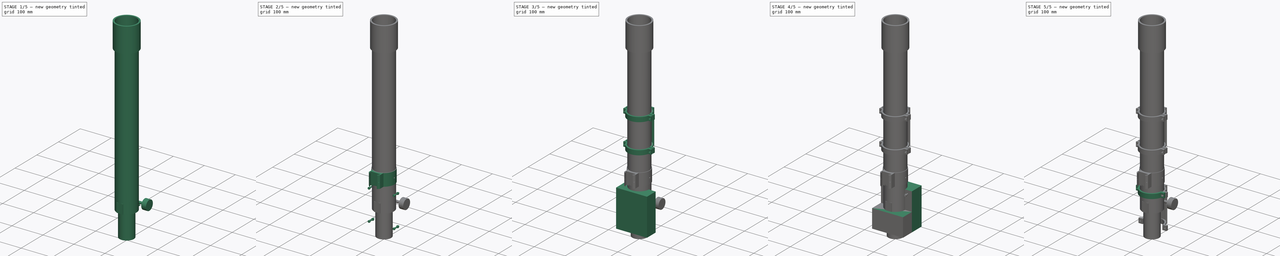
[diagram: build sequence overview — one tinted view per stage of 5, left to right]
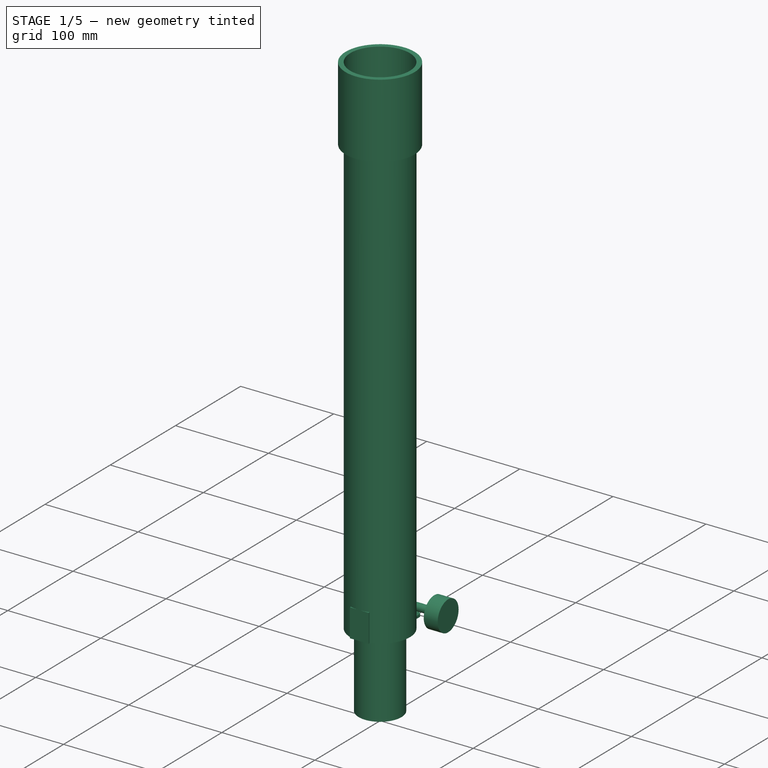
[diagram: stage 1 of 5 — iso view after this stage's code; geometry added in this stage tinted green]
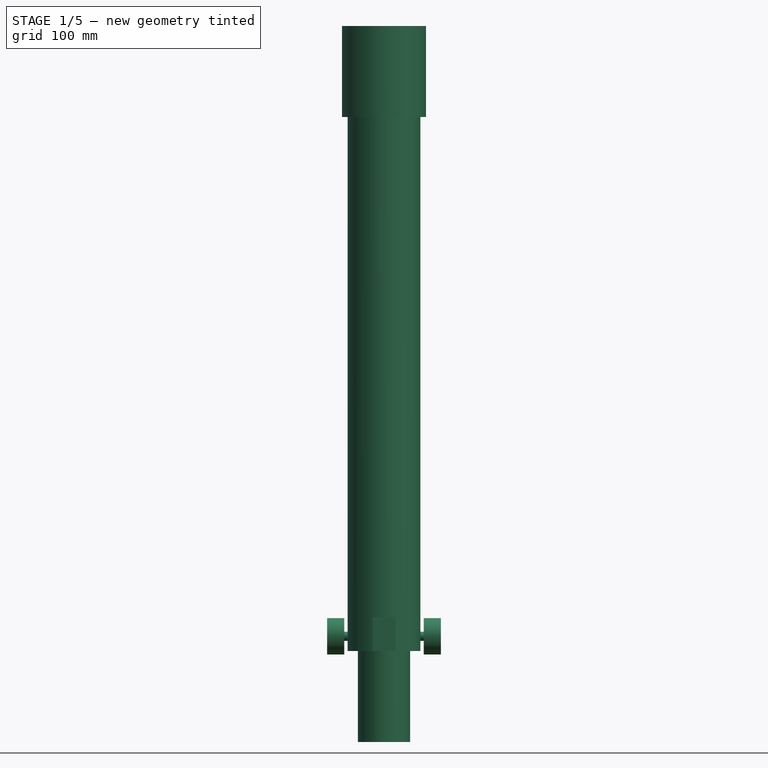
[diagram: stage 1 of 5 — front view after this stage's code; geometry added in this stage tinted green]
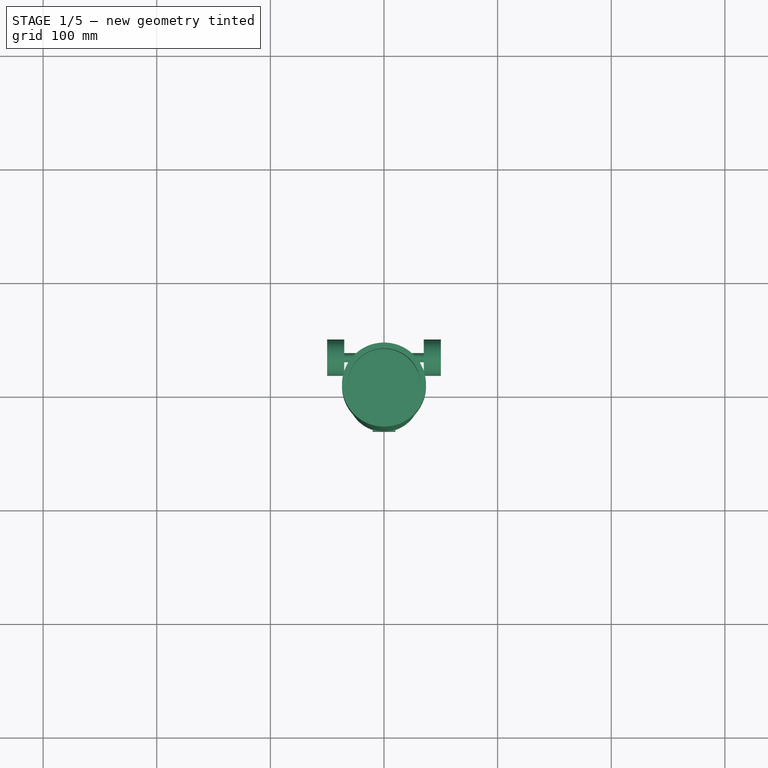
[diagram: stage 1 of 5 — top view after this stage's code; geometry added in this stage tinted green]
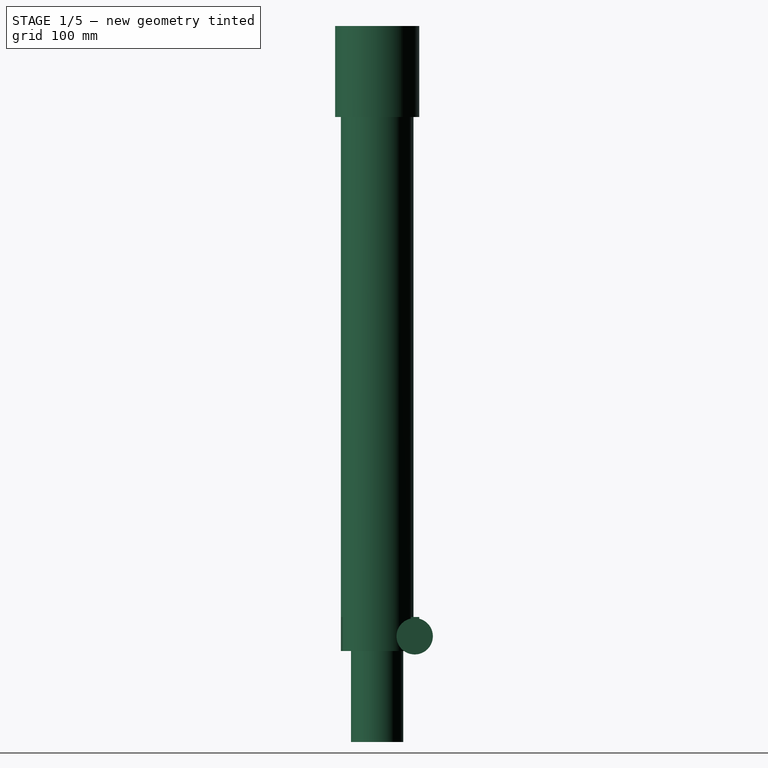
[diagram: stage 1 of 5 — right view after this stage's code; geometry added in this stage tinted green]
FCSTD DOCUMENT  (FreeCAD 0.17R12284 (Git))
Label: DIY telescope
License: All rights reserved
LicenseURL: http://en.wikipedia.org/wiki/All_rights_reserved
objects: Part::MultiFuse×35, Part::Cylinder×31, Part::Box×28, Part::FeaturePython×26, Part::Cut×22, Sketcher::SketchObject×4, Part::Extrusion×4, Part::Chamfer×1, App::Part×1
note: 151 computed .brp shape members not serialized (recipe doc carries the construction recipe); baked Part::Feature solids carry a one-line shape summary decoded from their .brp

FEATURE [Part::Cylinder] Cylinder014005177  label="Válec"
  Angle = 360
  AttacherType = Attacher::AttachEngine3D
  Height = 500
  Radius = 28.5
FEATURE [Part::Cylinder] Cylinder014005178  label="Válec164"
  Angle = 360
  AttacherType = Attacher::AttachEngine3D
  Height = 500
  Radius = 32
FEATURE [Part::Extrusion] Extrude003
  Base = -> Sketch003
  Dir = (0,1,0)
  DirMode = 2
  FaceMakerClass = Part::FaceMakerBullseye
  LengthFwd = -40
  LengthRev = 0
  Placement = pos=(-15,0,0) rot=(0,0,1;0rad)
  Solid = true
  Symmetric = false
FEATURE [Part::Cut] Cut061020  label="tubus !"
  Base = -> Cylinder014005178
  Tool = -> Cylinder014005177
FEATURE [Part::Box] Box034  label="Krychle025"
  AttacherType = Attacher::AttachEngine3D
  Height = 30
  Length = 20
  Placement = pos=(-10,-32,0) rot=(0,0,1;0rad)
  Width = 5
FEATURE [Part::Box] Box035  label="Krychle026"
  AttacherType = Attacher::AttachEngine3D
  Height = 30
  Length = 24
  Placement = pos=(-12,25,0) rot=(0,0,1;0rad)
  Width = 12
FEATURE [Part::Box] Box036  label="Krychle027"
  AttacherType = Attacher::AttachEngine3D
  Height = 30
  Length = 20
  Placement = pos=(-10,-32,0) rot=(0,0,1;0rad)
  Width = 5
FEATURE [Part::Box] Box037  label="Krychle028"
  AttacherType = Attacher::AttachEngine3D
  Height = 30
  Length = 24
  Placement = pos=(-12,25,0) rot=(0,0,1;0rad)
  Width = 12
FEATURE [Part::MultiFuse] Fusion121
  Shapes = -> [Box034,Box035]
FEATURE [Part::Cut] Cut061021  label="Tubus"
  Base = -> Cut061020
  Tool = -> Fusion121
FEATURE [Part::Cylinder] Cylinder014005179  label="Válec165"
  Angle = 360
  AttacherType = Attacher::AttachEngine3D
  Height = 30
  Radius = 28
FEATURE [Part::Cylinder] Cylinder014005180  label="Válec166"
  Angle = 360
  AttacherType = Attacher::AttachEngine3D
  Height = 30
  Radius = 23
FEATURE [Part::MultiFuse] Fusion122
  Shapes = -> [Box037,Box036,Cylinder014005179]
FEATURE [Part::Cut] Cut061022
  Base = -> Fusion122
  Tool = -> Cylinder014005180
FEATURE [Part::Cylinder] Cylinder014005181  label="Válec167"
  Angle = 360
  AttacherType = Attacher::AttachEngine3D
  Height = 120
  Placement = pos=(0,0,-80) rot=(0,0,1;0rad)
  Radius = 23
FEATURE [Part::Cylinder] Cylinder014005182  label="Válec168"
  Angle = 360
  AttacherType = Attacher::AttachEngine3D
  Height = 120
  Placement = pos=(0,0,-80) rot=(0,0,1;0rad)
  Radius = 20.5
FEATURE [Part::Cut] Cut061023
  Base = -> Cylinder014005181
  Tool = -> Cylinder014005182
FEATURE [Part::Cylinder] Cylinder014005183  label="Válec169"
  Angle = 360
  AttacherType = Attacher::AttachEngine3D
  Height = 100
  Placement = pos=(-50,33,13) rot=(0,1,0;1.5708rad)
  Radius = 4
FEATURE [Part::Cylinder] Cylinder014005184  label="Válec170"
  Angle = 360
  AttacherType = Attacher::AttachEngine3D
  Height = 15
  Placement = pos=(-50,33,13) rot=(0,1,0;1.5708rad)
  Radius = 16
FEATURE [Part::Cylinder] Cylinder014005185  label="Válec171"
  Angle = 360
  AttacherType = Attacher::AttachEngine3D
  Height = 15
  Placement = pos=(35,33,13) rot=(0,1,0;1.5708rad)
  Radius = 16
FEATURE [Part::MultiFuse] Fusion123  label="Focuser"
  Shapes = -> [Cut061023,Cut061022,Cylinder014005183,Cylinder014005184,Cylinder014005185]
FEATURE [Part::Cylinder] Cylinder014005186  label="Lens"
  Angle = 360
  AttacherType = Attacher::AttachEngine3D
  Height = 10
  Placement = pos=(0,0,500) rot=(0,0,1;0rad)
  Radius = 32
FEATURE [Part::Cylinder] Cylinder014005187  label="LensH"
  Angle = 360
  AttacherType = Attacher::AttachEngine3D
  Height = 80
  Placement = pos=(0,0,500) rot=(0,0,1;0rad)
  Radius = 37
FEATURE [Part::Cylinder] Cylinder014005188  label="LensH001"
  Angle = 360
  AttacherType = Attacher::AttachEngine3D
  Height = 80
  Placement = pos=(0,0,500) rot=(0,0,1;0rad)
  Radius = 32
FEATURE [Part::Cut] Cut061024
  Base = -> Cylinder014005187
  Placement = pos=(0,0,-30) rot=(0,0,1;0rad)
  Tool = -> Cylinder014005188
FEATURE [Part::Cylinder] Cylinder014005189  label="Lens001"
  Angle = 360
  AttacherType = Attacher::AttachEngine3D
  Height = 2
  Placement = pos=(0,0,510) rot=(0,0,1;0rad)
  Radius = 32
FEATURE [Part::Cylinder] Cylinder014005190  label="Lens002"
  Angle = 360
  AttacherType = Attacher::AttachEngine3D
  Height = 2
  Placement = pos=(0,0,510) rot=(0,0,1;0rad)
  Radius = 30
FEATURE [Part::Cut] Cut061025
  Base = -> Cylinder014005189
  Tool = -> Cylinder014005190
FEATURE [Part::MultiFuse] Fusion124
  Shapes = -> [Cut061025,Cut061024]
FEATURE [App::Part] Part  label="DIY telescope"
  Group = -> [Cut061020,Cylinder014005177,Cylinder014005178,Box034,Box035,Fusion121,Cut061021,Cylinder014005184,Cylinder014005180,Cylinder014005182,Cylinder014005185,Cylinder014005179,Cylinder014005183,Cylinder014005181,Box037,Cut061023,Cut061022,Box036,Fusion122,Fusion123,Cylinder014005186,Cylinder014005187,Cylinder014005189,Cylinder014005188,Cut061024,Cut061025,Cylinder014005190,Fusion124,Fusion097,Fusion099,+48 more]
  License = CC BY 3.0
  LicenseURL = http://creativecommons.org/licenses/by/3.0/
  Origin = -> Origin
  Placement = pos=(0,0,0) rot=(-1,0,0;1.5708rad)
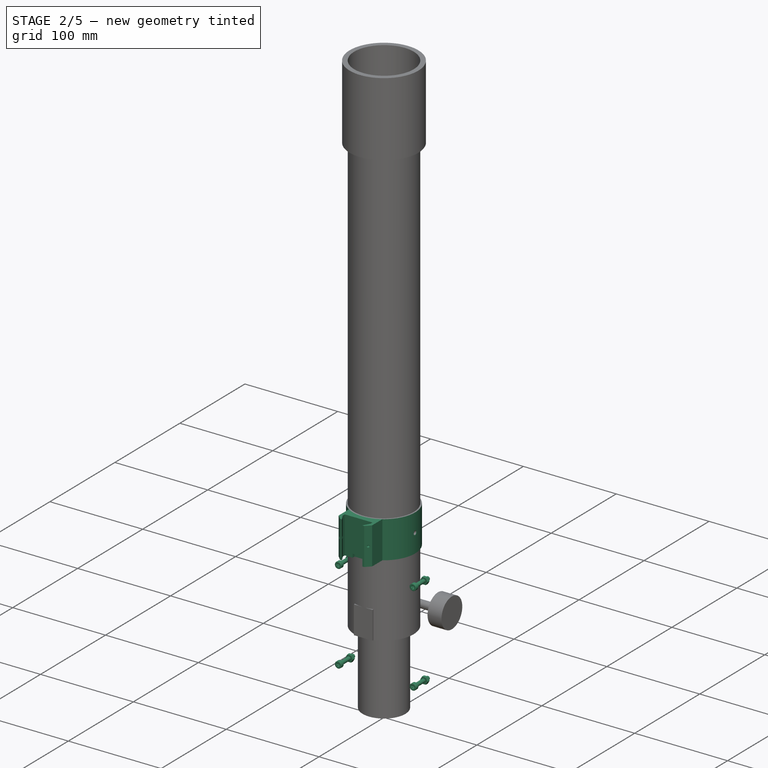
[diagram: stage 2 of 5 — iso view after this stage's code; geometry added in this stage tinted green]
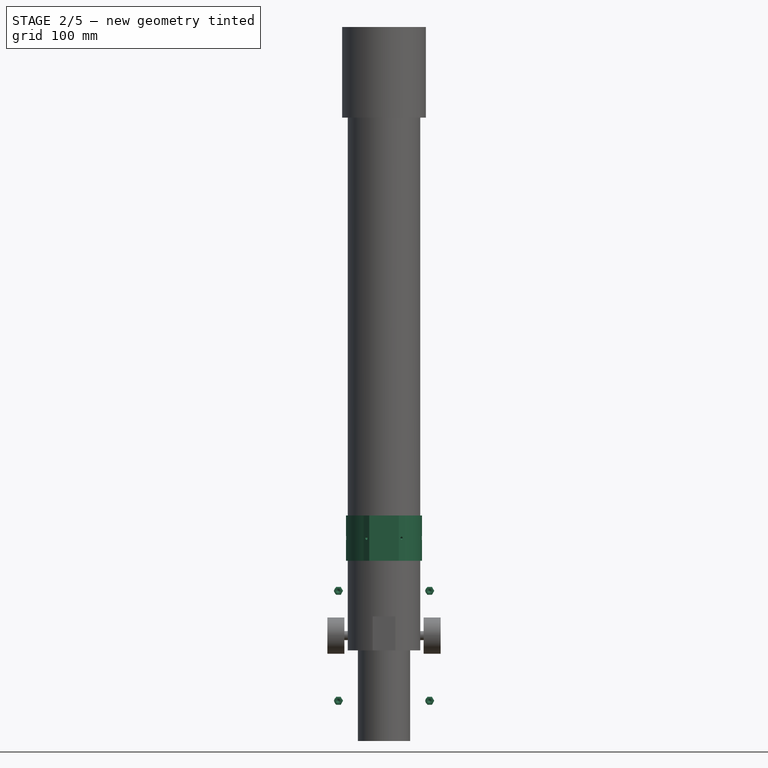
[diagram: stage 2 of 5 — front view after this stage's code; geometry added in this stage tinted green]
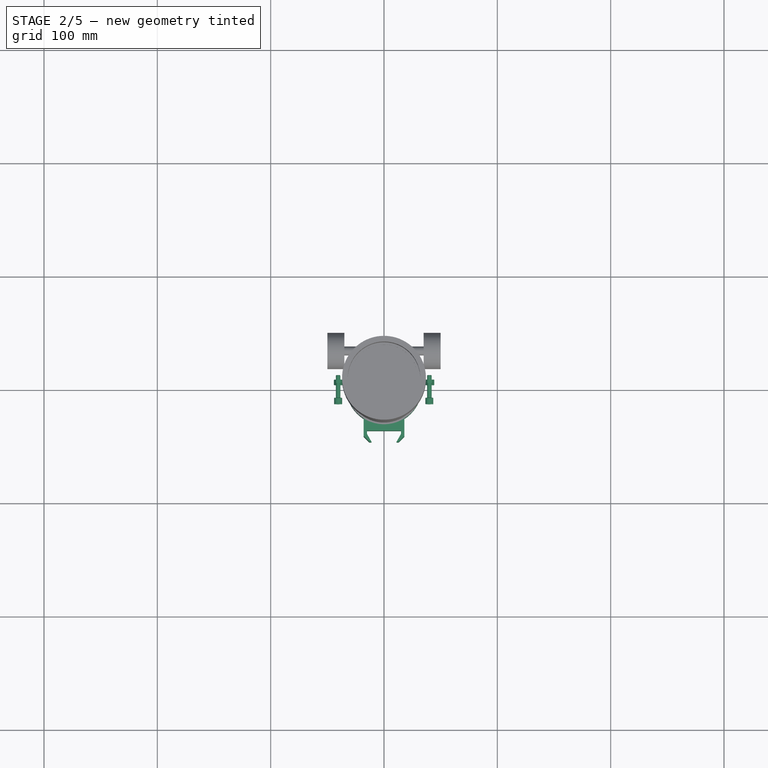
[diagram: stage 2 of 5 — top view after this stage's code; geometry added in this stage tinted green]
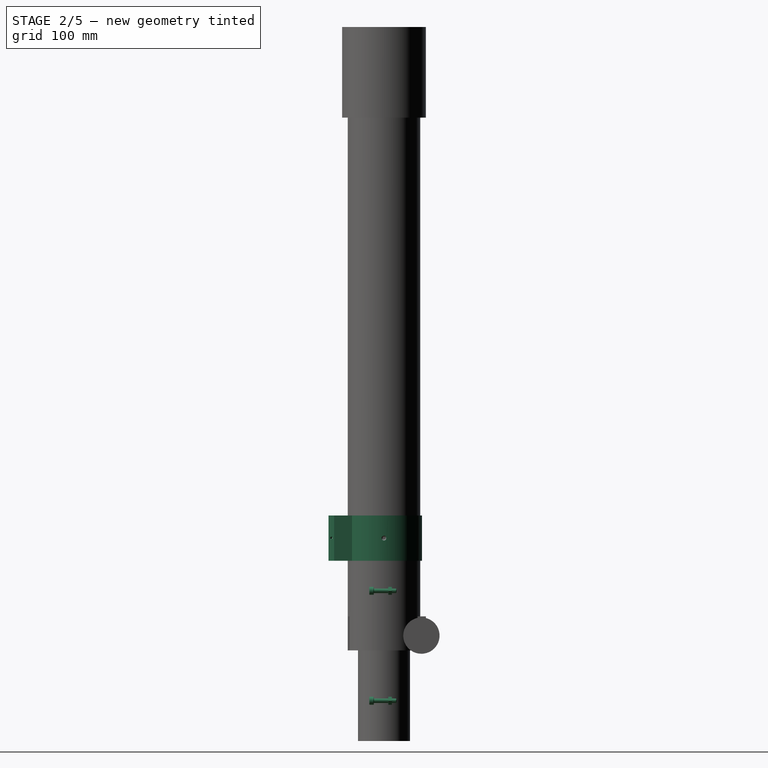
[diagram: stage 2 of 5 — right view after this stage's code; geometry added in this stage tinted green]
FEATURE [Part::FeaturePython] Screw  label="M4x20-Screw"  # Fasteners workbench fastener (typed FeaturePython)
  Placement = pos=(-40.5,-9,53) rot=(1,0,0;1.5708rad)
  diameter = 4
  invert = false
  length = 5
  matchOuter = false
  offset = 0
  thread = false
  type = 5
FEATURE [Part::FeaturePython] Nut  label="M4-Nut"  # Fasteners workbench fastener (typed FeaturePython)
  Placement = pos=(-40.2,7,53) rot=(1,0,0;1.5708rad)
  diameter = 6
  invert = false
  matchOuter = false
  offset = 0
  thread = false
  type = 1
FEATURE [Part::MultiFuse] Fusion098  label="Srouby"
  Placement = pos=(0,0,-0.5) rot=(0,0,1;0rad)
  Shapes = -> [Screw,Nut]
FEATURE [Part::FeaturePython] Nut001  label="M4-Nut001"  # Fasteners workbench fastener (typed FeaturePython)
  Placement = pos=(-40.2,7,53) rot=(1,0,0;1.5708rad)
  diameter = 6
  invert = false
  matchOuter = false
  offset = 0
  thread = false
  type = 1
FEATURE [Part::FeaturePython] Screw001  label="M4x20-Screw001"  # Fasteners workbench fastener (typed FeaturePython)
  Placement = pos=(-40.5,-9,53) rot=(1,0,0;1.5708rad)
  diameter = 4
  invert = false
  length = 5
  matchOuter = false
  offset = 0
  thread = false
  type = 5
FEATURE [Part::MultiFuse] Fusion099  label="Srouby001"
  Placement = pos=(80.5,0,-0.5) rot=(0,0,1;0rad)
  Shapes = -> [Screw001,Nut001]
FEATURE [Part::FeaturePython] Nut002  label="M4-Nut002"  # Fasteners workbench fastener (typed FeaturePython)
  Placement = pos=(-40.2,7,53) rot=(1,0,0;1.5708rad)
  diameter = 6
  invert = false
  matchOuter = false
  offset = 0
  thread = false
  type = 1
FEATURE [Part::FeaturePython] Screw002  label="M4x20-Screw002"  # Fasteners workbench fastener (typed FeaturePython)
  Placement = pos=(-40.5,-9,53) rot=(1,0,0;1.5708rad)
  diameter = 4
  invert = false
  length = 5
  matchOuter = false
  offset = 0
  thread = false
  type = 5
FEATURE [Part::MultiFuse] Fusion100  label="Srouby002"
  Placement = pos=(0,0,-97.5) rot=(0,0,1;0rad)
  Shapes = -> [Screw002,Nut002]
FEATURE [Part::FeaturePython] Nut003  label="M4-Nut003"  # Fasteners workbench fastener (typed FeaturePython)
  Placement = pos=(-40.2,7,53) rot=(1,0,0;1.5708rad)
  diameter = 6
  invert = false
  matchOuter = false
  offset = 0
  thread = false
  type = 1
FEATURE [Part::FeaturePython] Screw003  label="M4x20-Screw003"  # Fasteners workbench fastener (typed FeaturePython)
  Placement = pos=(-40.5,-9,53) rot=(1,0,0;1.5708rad)
  diameter = 4
  invert = false
  length = 5
  matchOuter = false
  offset = 0
  thread = false
  type = 5
FEATURE [Part::MultiFuse] Fusion101  label="Srouby003"
  Placement = pos=(80.5,0,-97.5) rot=(0,0,1;0rad)
  Shapes = -> [Screw003,Nut003]
FEATURE [Part::Box] Box009  label="Krychle009"
  AttacherType = Attacher::AttachEngine3D
  Height = 3
  Length = 13
  Placement = pos=(-6.5,0,-3) rot=(0,0,1;0rad)
  Width = 4
FEATURE [Part::Cylinder] Cylinder007  label="Válec007"
  Angle = 360
  AttacherType = Attacher::AttachEngine3D
  Height = 10
  Placement = pos=(-12,20,4) rot=(0,-1,0;0.785398rad)
  Radius = 1.4
FEATURE [Part::Cylinder] Cylinder008  label="Válec008"
  Angle = 360
  AttacherType = Attacher::AttachEngine3D
  Height = 10
  Placement = pos=(12,20,4) rot=(0,1,0;0.785398rad)
  Radius = 1.4
FEATURE [Part::Box] Box008  label="Krychle008"
  AttacherType = Attacher::AttachEngine3D
  Height = 15
  Length = 36
  Placement = pos=(-18,0,-5) rot=(0,0,1;0rad)
  Width = 40
FEATURE [Part::FeaturePython] Screw012  label="M2.5x8-Screw"  # Fasteners workbench fastener (typed FeaturePython)
  Placement = pos=(34,0,20) rot=(0,1,0;1.5708rad)
  diameter = 3
  invert = false
  length = 3
  matchOuter = false
  offset = 0
  thread = false
  type = 12
FEATURE [Part::FeaturePython] Screw013  label="M2.5x8-Screw001"  # Fasteners workbench fastener (typed FeaturePython)
  Placement = pos=(-34,0,20) rot=(0,-1,0;1.5708rad)
  diameter = 3
  invert = false
  length = 3
  matchOuter = false
  offset = 0
  thread = false
  type = 12
FEATURE [Sketcher::SketchObject] Sketch003
  MapMode = 5
  Placement = pos=(0,40,0) rot=(0,0.707107,0.707107;3.14159rad)
  sketch-geometry (6):
    g0: LineSegment StartX=0 StartY=0 StartZ=0 EndX=0 EndY=3 EndZ=0
    g1: LineSegment StartX=0 StartY=3 StartZ=0 EndX=-4 EndY=10 EndZ=0
    g2: LineSegment StartX=-4 StartY=10 StartZ=0 EndX=-26 EndY=10 EndZ=0
    g3: LineSegment StartX=-26 StartY=10 StartZ=0 EndX=-30 EndY=3 EndZ=0
    g4: LineSegment StartX=-30 StartY=3 StartZ=0 EndX=-30 EndY=0 EndZ=0
    g5: LineSegment StartX=-30 StartY=0 StartZ=0 EndX=0 EndY=0 EndZ=0
  constraints (11):
    c: Coincident(g-1,g0)
    c: PointOnObject(g0,g-2)
    c: Coincident(g0,g1)
    c: Coincident(g1,g2)
    c: Horizontal(g2)
    c: Coincident(g2,g3)
    c: Coincident(g3,g4)
    c: PointOnObject(g4,g-1)
    c: Vertical(g4)
    c: Coincident(g4,g5)
    c: Coincident(g5,g0)
FEATURE [Part::Box] Box010  label="Krychle010"
  AttacherType = Attacher::AttachEngine3D
  Height = 40
  Length = 36
  Placement = pos=(-18,-36,0) rot=(0,0,1;0rad)
  Width = 10
FEATURE [Part::Cylinder] Cylinder010  label="Válec010"
  Angle = 360
  AttacherType = Attacher::AttachEngine3D
  Height = 40
  Placement = pos=(0,0,0) rot=(0,0,1;3.83972rad)
  Radius = 33.5
FEATURE [Part::Cylinder] Cylinder009  label="Válec009"
  Angle = 360
  AttacherType = Attacher::AttachEngine3D
  Height = 40
  Placement = pos=(0,0,0) rot=(0,0,1;0.872665rad)
  Radius = 32
FEATURE [Part::MultiFuse] Fusion006
  Shapes = -> [Cylinder008,Cylinder007]
FEATURE [Part::MultiFuse] Fusion007  label="Dovecot profile002"
  Shapes = -> [Extrude003,Box009]
FEATURE [Part::Cut] Cut004
  Base = -> Box008
  Tool = -> Fusion007
FEATURE [Part::Chamfer] Chamfer001
  Base = -> Cut004
  Edges = 2 edges r=5: [Edge2,Edge29]
FEATURE [Part::Cut] Cut005  label="Dov holder001"
  Base = -> Chamfer001
  Placement = pos=(0,-39,0) rot=(1,0,0;1.5708rad)
  Tool = -> Fusion006
FEATURE [Part::MultiFuse] Fusion009
  Shapes = -> [Screw012,Screw013]
FEATURE [Part::MultiFuse] Fusion008
  Shapes = -> [Cylinder010,Cut005,Box010]
FEATURE [Part::Cut] Cut006
  Base = -> Fusion008
  Tool = -> Cylinder009
FEATURE [Part::Cut] Cut007  label="Telscop dovetail holder"
  Base = -> Cut006
  Placement = pos=(0,0,79) rot=(0,0,1;0rad)
  Tool = -> Fusion009
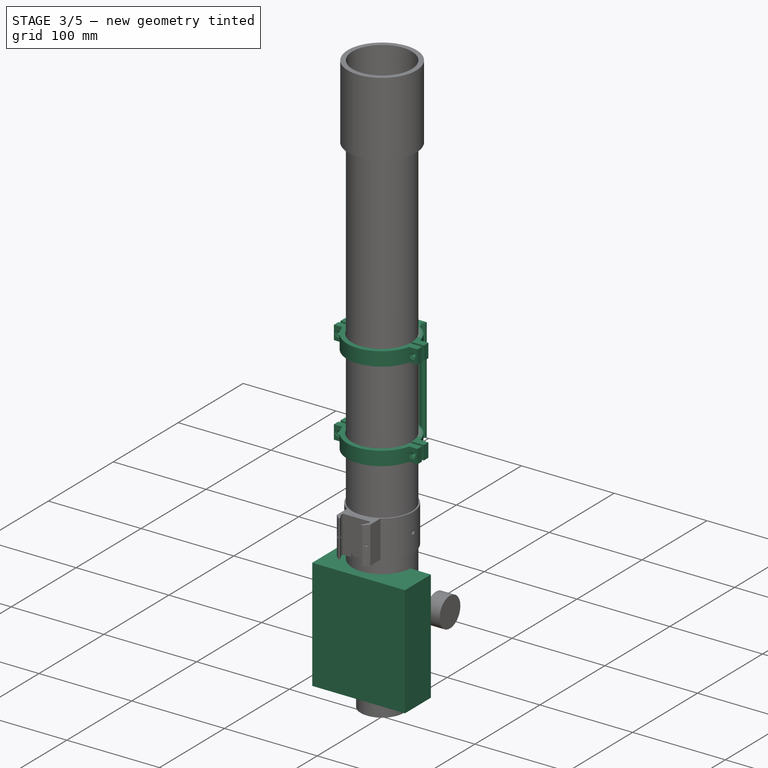
[diagram: stage 3 of 5 — iso view after this stage's code; geometry added in this stage tinted green]
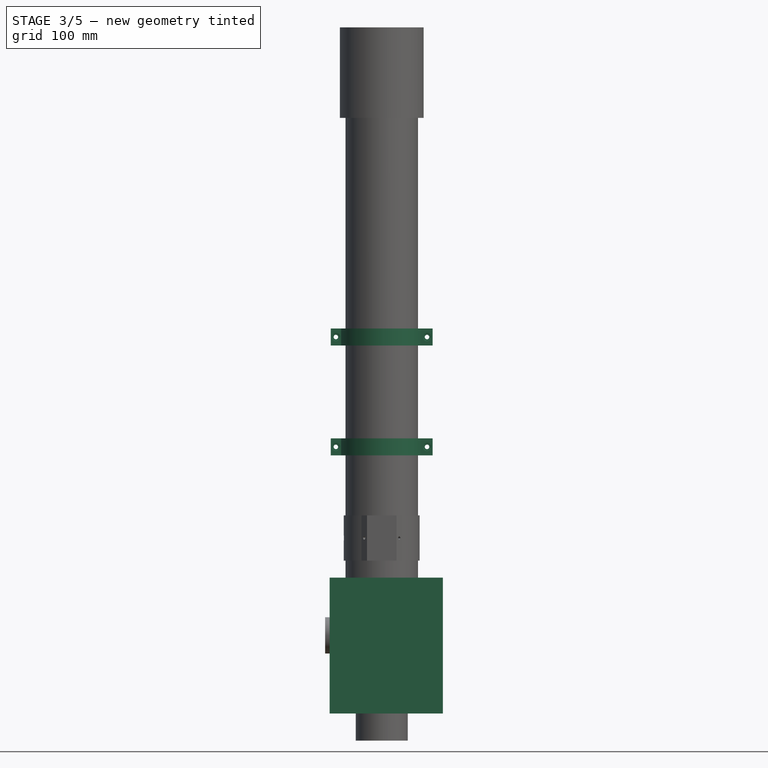
[diagram: stage 3 of 5 — front view after this stage's code; geometry added in this stage tinted green]
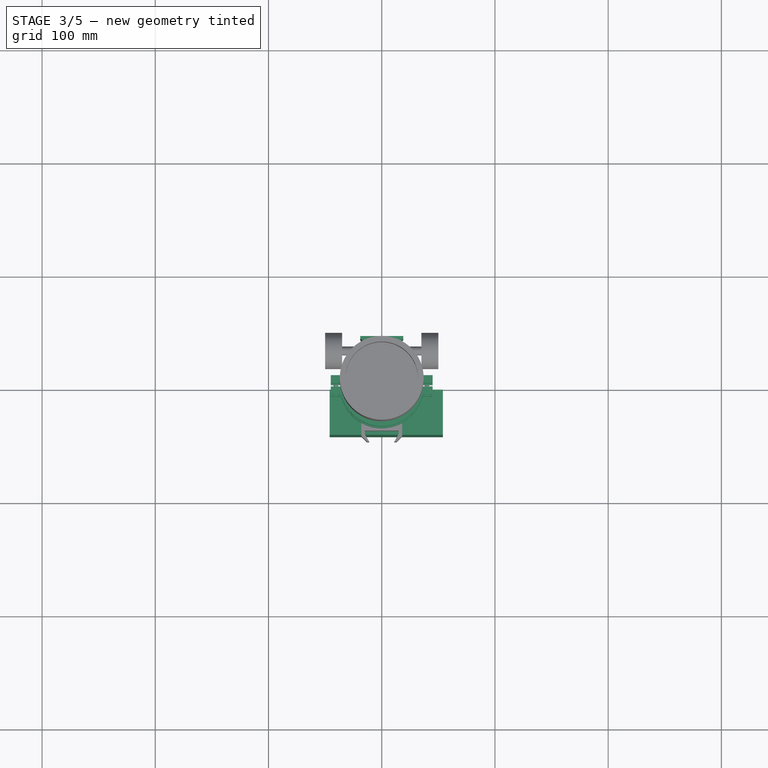
[diagram: stage 3 of 5 — top view after this stage's code; geometry added in this stage tinted green]
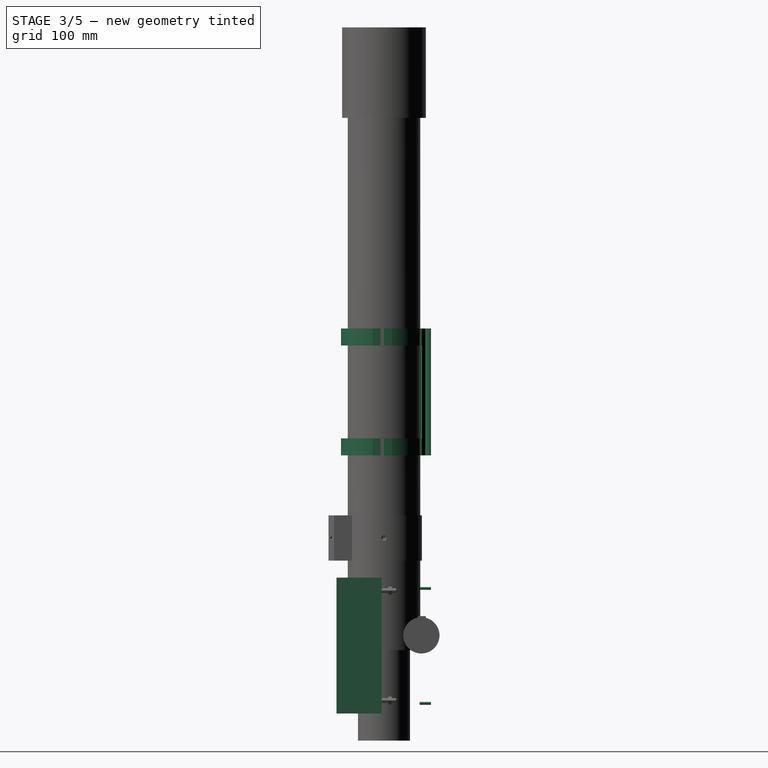
[diagram: stage 3 of 5 — right view after this stage's code; geometry added in this stage tinted green]
FEATURE [Sketcher::SketchObject] Sketch
  MapMode = 5
  Placement = pos=(0,0,60) rot=(0,0,1;0rad)
  sketch-geometry (6):
    g0: LineSegment StartX=-18.9734 StartY=34.0308 StartZ=0 EndX=-16.0253 EndY=36.9748 EndZ=0
    g1: LineSegment StartX=18.996 StartY=34.0308 StartZ=0 EndX=16.044 EndY=36.9748 EndZ=0
    g2: LineSegment StartX=18.996 StartY=34.0308 StartZ=0 EndX=-18.9734 EndY=34.0308 EndZ=0
    g3: LineSegment StartX=-18.9734 StartY=40.0311 StartZ=0 EndX=-16.0253 EndY=36.9748 EndZ=0
    g4: LineSegment StartX=16.044 StartY=36.9748 StartZ=0 EndX=18.9109 EndY=40.0311 EndZ=0
    g5: LineSegment StartX=-18.9734 StartY=40.0311 StartZ=0 EndX=18.9109 EndY=40.0311 EndZ=0
  constraints (7):
    c: Coincident(g2,g1)
    c: Coincident(g2,g0)
    c: Horizontal(g2)
    c: Coincident(g3,g0)
    c: Coincident(g5,g3)
    c: Coincident(g5,g4)
    c: Horizontal(g5)
FEATURE [Part::Extrusion] Extrude009
  Base = -> Sketch
  Dir = (0,0,1)
  DirMode = 2
  FaceMakerClass = Part::FaceMakerBullseye
  LengthFwd = -112
  LengthRev = 0
  Solid = true
  Symmetric = false
FEATURE [Part::Box] Box014  label="Krychle"
  AttacherType = Attacher::AttachEngine3D
  Height = 112
  Length = 38
  Placement = pos=(-19,32,-52) rot=(0,0,1;0rad)
  Width = 10
FEATURE [Part::Box] Box015  label="Krychle011"
  AttacherType = Attacher::AttachEngine3D
  Height = 112
  Length = 38
  Placement = pos=(-19,34,-52) rot=(0,0,1;0rad)
  Width = 6
FEATURE [Part::Cut] Cut061009
  Base = -> Box014
  Tool = -> Box015
FEATURE [Part::MultiFuse] Fusion095  label="Arca plate base"
  Placement = pos=(0,-0.5,0) rot=(0,0,1;0rad)
  Shapes = -> [Extrude009,Cut061009]
FEATURE [Part::Cylinder] Cylinder  label="tubus"
  Angle = 360
  AttacherType = Attacher::AttachEngine3D
  Height = 112
  Placement = pos=(0,-1,-52) rot=(0,0,1;0rad)
  Radius = 32
FEATURE [Part::Cylinder] Cylinder014005167  label="tubus001"
  Angle = 360
  AttacherType = Attacher::AttachEngine3D
  Height = 15
  Placement = pos=(0,-1,-52) rot=(0,0,1;0rad)
  Radius = 37
FEATURE [Part::Cylinder] Cylinder014005168  label="tubus002"
  Angle = 360
  AttacherType = Attacher::AttachEngine3D
  Height = 15
  Placement = pos=(0,-1,45) rot=(0,0,1;0rad)
  Radius = 37
FEATURE [Part::Box] Box  label="Krychle012"
  AttacherType = Attacher::AttachEngine3D
  Height = 15
  Length = 90
  Placement = pos=(-45,-10,45) rot=(0,0,1;0rad)
  Width = 17
FEATURE [Part::Box] Box016  label="mezara"
  AttacherType = Attacher::AttachEngine3D
  Height = 15
  Length = 90
  Placement = pos=(-45,-3,45) rot=(0,0,1;0rad)
  Width = 3
FEATURE [Part::Box] Box017  label="Krychle013"
  AttacherType = Attacher::AttachEngine3D
  Height = 15
  Length = 90
  Placement = pos=(-45,-10,-52) rot=(0,0,1;0rad)
  Width = 17
FEATURE [Part::Box] Box018  label="mezara001"
  AttacherType = Attacher::AttachEngine3D
  Height = 15
  Length = 90
  Placement = pos=(-45,-3,-52) rot=(0,0,1;0rad)
  Width = 3
FEATURE [Part::MultiFuse] Fusion096
  Shapes = -> [Fusion095,Cylinder014005167,Cylinder014005168,Box,Box017]
FEATURE [Part::MultiFuse] Fusion097
  Shapes = -> [Box016,Box018,Cylinder]
FEATURE [Part::Cut] Cut
  Base = -> Fusion096
  Tool = -> Fusion097
FEATURE [Part::MultiFuse] Fusion102
  Shapes = -> [Fusion098,Fusion099,Fusion100,Fusion101]
FEATURE [Part::Cut] Cut061010  label="Swiss Arca holder"
  Base = -> Cut
  Placement = pos=(0,0,224) rot=(0,0,1;0rad)
  Tool = -> Fusion102
FEATURE [Part::FeaturePython] Screw004  label="M4x20-Screw004"  # Fasteners workbench fastener (typed FeaturePython)
  Placement = pos=(-40.5,-9,53) rot=(1,0,0;1.5708rad)
  diameter = 4
  invert = false
  length = 5
  matchOuter = false
  offset = 0
  thread = false
  type = 5
FEATURE [Part::FeaturePython] Nut005  label="M4-Nut005"  # Fasteners workbench fastener (typed FeaturePython)
  Placement = pos=(-40.2,7,53) rot=(1,0,0;1.5708rad)
  diameter = 6
  invert = false
  matchOuter = false
  offset = 0
  thread = false
  type = 1
FEATURE [Part::FeaturePython] Screw005  label="M4x20-Screw005"  # Fasteners workbench fastener (typed FeaturePython)
  Placement = pos=(-40.5,-9,53) rot=(1,0,0;1.5708rad)
  diameter = 4
  invert = false
  length = 5
  matchOuter = false
  offset = 0
  thread = false
  type = 5
FEATURE [Part::FeaturePython] Screw006  label="M4x20-Screw006"  # Fasteners workbench fastener (typed FeaturePython)
  Placement = pos=(-40.5,-9,53) rot=(1,0,0;1.5708rad)
  diameter = 4
  invert = false
  length = 5
  matchOuter = false
  offset = 0
  thread = false
  type = 5
FEATURE [Part::FeaturePython] Nut006  label="M4-Nut006"  # Fasteners workbench fastener (typed FeaturePython)
  Placement = pos=(-40.2,7,53) rot=(1,0,0;1.5708rad)
  diameter = 6
  invert = false
  matchOuter = false
  offset = 0
  thread = false
  type = 1
FEATURE [Part::FeaturePython] Nut007  label="M4-Nut007"  # Fasteners workbench fastener (typed FeaturePython)
  Placement = pos=(-40.2,7,53) rot=(1,0,0;1.5708rad)
  diameter = 6
  invert = false
  matchOuter = false
  offset = 0
  thread = false
  type = 1
FEATURE [Part::MultiFuse] Fusion108  label="Srouby006"
  Placement = pos=(80.5,0,-97.5) rot=(0,0,1;0rad)
  Shapes = -> [Screw006,Nut006]
FEATURE [Part::MultiFuse] Fusion109  label="Srouby007"
  Placement = pos=(80.5,0,-0.5) rot=(0,0,1;0rad)
  Shapes = -> [Screw005,Nut005]
FEATURE [Part::Box] Box025  label="Krychle018"
  AttacherType = Attacher::AttachEngine3D
  Height = 120
  Length = 100
  Placement = pos=(-46,-42,-56) rot=(0,0,1;0rad)
  Width = 40
FEATURE [Part::Cylinder] Cylinder014005175  label="Válec162"
  Angle = 360
  AttacherType = Attacher::AttachEngine3D
  Height = 10
  Placement = pos=(0,43,54.5) rot=(1,0,0;1.5708rad)
  Radius = 1.25
FEATURE [Part::Cylinder] Cylinder014005176  label="Válec163"
  Angle = 360
  AttacherType = Attacher::AttachEngine3D
  Height = 10
  Placement = pos=(0,43,-47) rot=(1,0,0;1.5708rad)
  Radius = 1.24
FEATURE [Part::MultiFuse] Fusion120  label="zarazky001"
  Placement = pos=(0,-1.5,0) rot=(0,0,1;0rad)
  Shapes = -> [Cylinder014005175,Cylinder014005176]
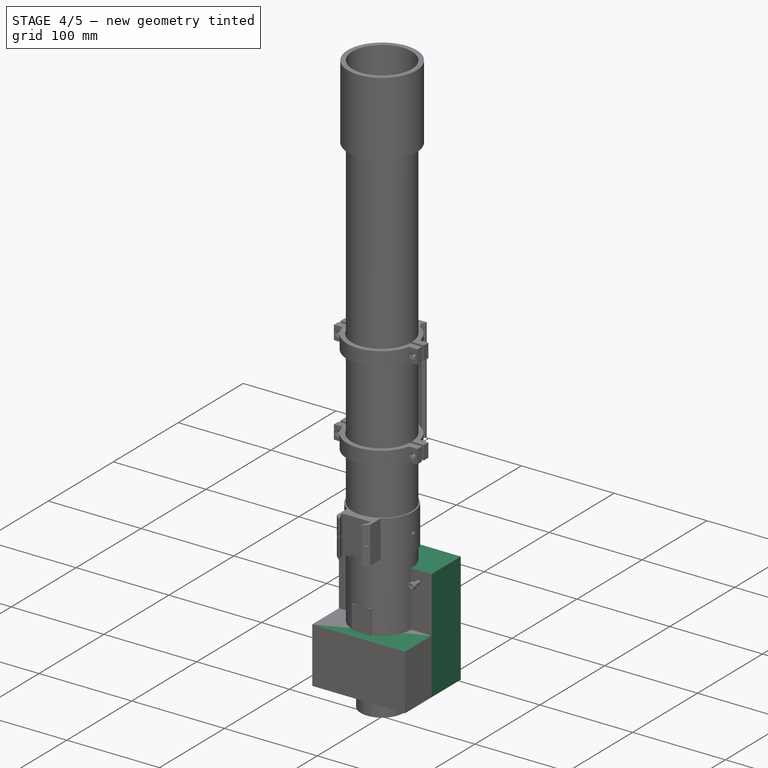
[diagram: stage 4 of 5 — iso view after this stage's code; geometry added in this stage tinted green]
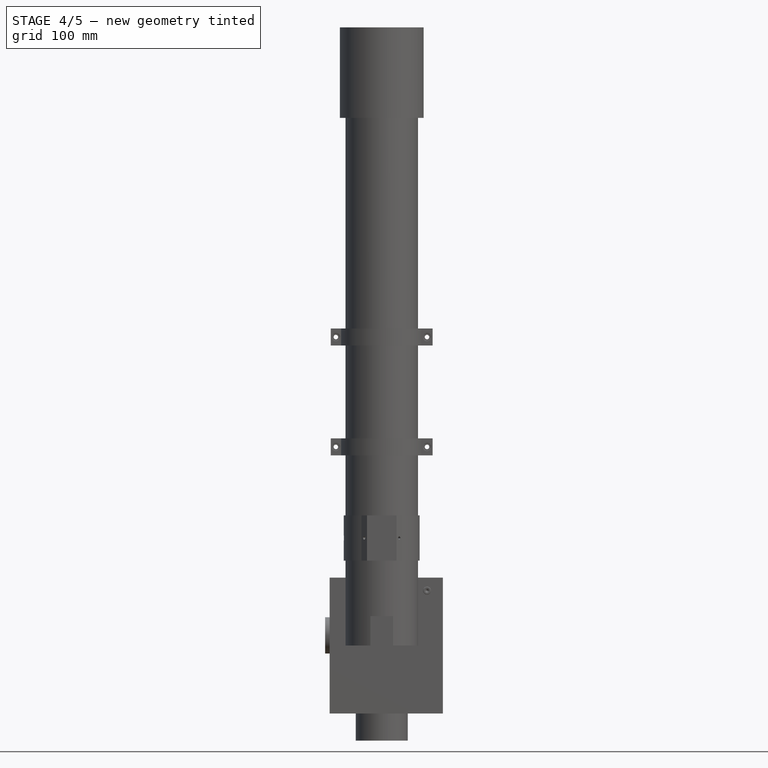
[diagram: stage 4 of 5 — front view after this stage's code; geometry added in this stage tinted green]
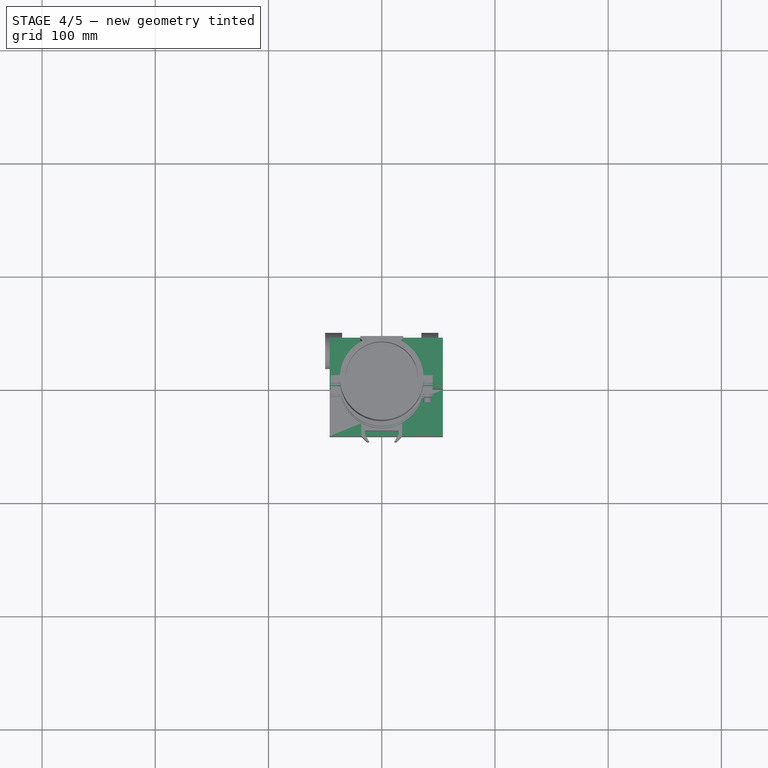
[diagram: stage 4 of 5 — top view after this stage's code; geometry added in this stage tinted green]
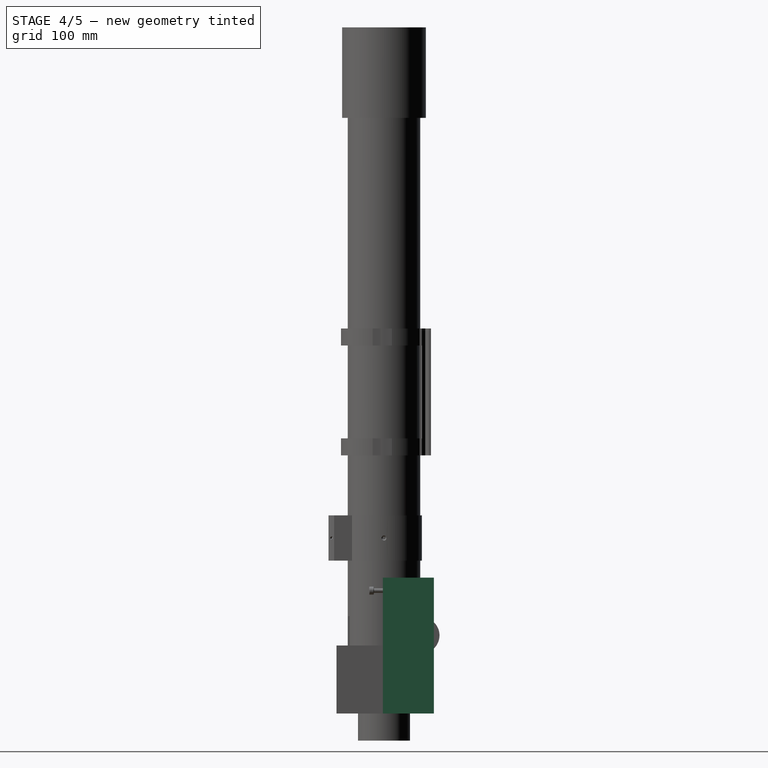
[diagram: stage 4 of 5 — right view after this stage's code; geometry added in this stage tinted green]
FEATURE [Part::FeaturePython] Nut004  label="M4-Nut004"  # Fasteners workbench fastener (typed FeaturePython)
  Placement = pos=(-40.2,7,53) rot=(1,0,0;1.5708rad)
  diameter = 6
  invert = false
  matchOuter = false
  offset = 0
  thread = false
  type = 1
FEATURE [Part::Cylinder] Cylinder014005169  label="tubus003"
  Angle = 360
  AttacherType = Attacher::AttachEngine3D
  Height = 15
  Placement = pos=(0,-1,-52) rot=(0,0,1;0rad)
  Radius = 37
FEATURE [Part::FeaturePython] Screw007  label="M4x20-Screw007"  # Fasteners workbench fastener (typed FeaturePython)
  Placement = pos=(-40.5,-9,53) rot=(1,0,0;1.5708rad)
  diameter = 4
  invert = false
  length = 5
  matchOuter = false
  offset = 0
  thread = false
  type = 5
FEATURE [Part::Box] Box019  label="Krychle014"
  AttacherType = Attacher::AttachEngine3D
  Height = 15
  Length = 90
  Placement = pos=(-45,-10,-52) rot=(0,0,1;0rad)
  Width = 17
FEATURE [Part::Box] Box020  label="mezara002"
  AttacherType = Attacher::AttachEngine3D
  Height = 15
  Length = 90
  Placement = pos=(-45,-3,-52) rot=(0,0,1;0rad)
  Width = 3
FEATURE [Part::Box] Box021  label="Krychle015"
  AttacherType = Attacher::AttachEngine3D
  Height = 15
  Length = 90
  Placement = pos=(-45,-10,45) rot=(0,0,1;0rad)
  Width = 17
FEATURE [Part::Box] Box022  label="Krychle016"
  AttacherType = Attacher::AttachEngine3D
  Height = 112
  Length = 38
  Placement = pos=(-19,34,-52) rot=(0,0,1;0rad)
  Width = 6
FEATURE [Part::Box] Box023  label="mezara003"
  AttacherType = Attacher::AttachEngine3D
  Height = 15
  Length = 90
  Placement = pos=(-45,-3,45) rot=(0,0,1;0rad)
  Width = 3
FEATURE [Part::Box] Box024  label="Krychle017"
  AttacherType = Attacher::AttachEngine3D
  Height = 112
  Length = 38
  Placement = pos=(-19,32,-52) rot=(0,0,1;0rad)
  Width = 10
FEATURE [Part::Cylinder] Cylinder014005170  label="tubus004"
  Angle = 360
  AttacherType = Attacher::AttachEngine3D
  Height = 112
  Placement = pos=(0,-1,-52) rot=(0,0,1;0rad)
  Radius = 32
FEATURE [Part::Cylinder] Cylinder014005171  label="tubus005"
  Angle = 360
  AttacherType = Attacher::AttachEngine3D
  Height = 15
  Placement = pos=(0,-1,45) rot=(0,0,1;0rad)
  Radius = 37
FEATURE [Sketcher::SketchObject] Sketch001
  MapMode = 5
  Placement = pos=(0,0,60) rot=(0,0,1;0rad)
  sketch-geometry (6):
    g0: LineSegment StartX=-18.9734 StartY=34.0308 StartZ=0 EndX=-16.0253 EndY=36.9748 EndZ=0
    g1: LineSegment StartX=18.996 StartY=34.0308 StartZ=0 EndX=16.044 EndY=36.9748 EndZ=0
    g2: LineSegment StartX=18.996 StartY=34.0308 StartZ=0 EndX=-18.9734 EndY=34.0308 EndZ=0
    g3: LineSegment StartX=-18.9734 StartY=40.0311 StartZ=0 EndX=-16.0253 EndY=36.9748 EndZ=0
    g4: LineSegment StartX=16.044 StartY=36.9748 StartZ=0 EndX=18.9109 EndY=40.0311 EndZ=0
    g5: LineSegment StartX=-18.9734 StartY=40.0311 StartZ=0 EndX=18.9109 EndY=40.0311 EndZ=0
  constraints (7):
    c: Coincident(g2,g1)
    c: Coincident(g2,g0)
    c: Horizontal(g2)
    c: Coincident(g3,g0)
    c: Coincident(g5,g3)
    c: Coincident(g5,g4)
    c: Horizontal(g5)
FEATURE [Part::Extrusion] Extrude010
  Base = -> Sketch001
  Dir = (0,0,1)
  DirMode = 2
  FaceMakerClass = Part::FaceMakerBullseye
  LengthFwd = -112
  LengthRev = 0
  Solid = true
  Symmetric = false
FEATURE [Part::Cut] Cut061011
  Base = -> Box024
  Tool = -> Box022
FEATURE [Part::MultiFuse] Fusion103  label="Arca plate base001"
  Placement = pos=(0,-0.5,0) rot=(0,0,1;0rad)
  Shapes = -> [Extrude010,Cut061011]
FEATURE [Part::MultiFuse] Fusion104
  Shapes = -> [Box023,Box020,Cylinder014005170]
FEATURE [Part::MultiFuse] Fusion105
  Shapes = -> [Fusion103,Cylinder014005169,Cylinder014005171,Box021,Box019]
FEATURE [Part::Cut] Cut061012
  Base = -> Fusion105
  Tool = -> Fusion104
FEATURE [Part::MultiFuse] Fusion106  label="Srouby004"
  Placement = pos=(0,0,-0.5) rot=(0,0,1;0rad)
  Shapes = -> [Screw007,Nut004]
FEATURE [Part::MultiFuse] Fusion107  label="Srouby005"
  Placement = pos=(0,0,-97.5) rot=(0,0,1;0rad)
  Shapes = -> [Screw004,Nut007]
FEATURE [Part::MultiFuse] Fusion110
  Shapes = -> [Fusion106,Fusion109,Fusion107,Fusion108]
FEATURE [Part::Cut] Cut061013  label="Drzak 002"
  Base = -> Cut061012
  Tool = -> Fusion110
FEATURE [Part::Cut] Cut061014  label="Drazak spodek"
  Base = -> Cut061013
  Tool = -> Box025
FEATURE [Part::Box] Box026  label="Krychle019"
  AttacherType = Attacher::AttachEngine3D
  Height = 120
  Length = 100
  Placement = pos=(-46,-1,-56) rot=(0,0,1;0rad)
  Width = 45
FEATURE [Part::FeaturePython] Nut009  label="M4-Nut009"  # Fasteners workbench fastener (typed FeaturePython)
  Placement = pos=(-40.2,7,53) rot=(1,0,0;1.5708rad)
  diameter = 6
  invert = false
  matchOuter = false
  offset = 0
  thread = false
  type = 1
FEATURE [Part::FeaturePython] Screw009  label="M4x20-Screw009"  # Fasteners workbench fastener (typed FeaturePython)
  Placement = pos=(-40.5,-9,53) rot=(1,0,0;1.5708rad)
  diameter = 4
  invert = false
  length = 5
  matchOuter = false
  offset = 0
  thread = false
  type = 5
FEATURE [Part::FeaturePython] Nut010  label="M4-Nut010"  # Fasteners workbench fastener (typed FeaturePython)
  Placement = pos=(-40.2,7,53) rot=(1,0,0;1.5708rad)
  diameter = 6
  invert = false
  matchOuter = false
  offset = 0
  thread = false
  type = 1
FEATURE [Part::MultiFuse] Fusion117  label="Srouby011"
  Placement = pos=(80.5,0,-0.5) rot=(0,0,1;0rad)
  Shapes = -> [Screw009,Nut009]
FEATURE [Part::Box] Box033  label="Krychle024"
  AttacherType = Attacher::AttachEngine3D
  Height = 60
  Length = 100
  Placement = pos=(-46,-42,-56) rot=(0,0,1;0rad)
  Width = 43
FEATURE [Part::MultiFuse] Fusion119
  Shapes = -> [Box033,Box026]
FEATURE [Part::Cut] Cut061019  label="telecosp bottom"
  Base = -> Cut061014
  Placement = pos=(0,2,-3) rot=(0,0,1;0rad)
  Tool = -> Fusion120
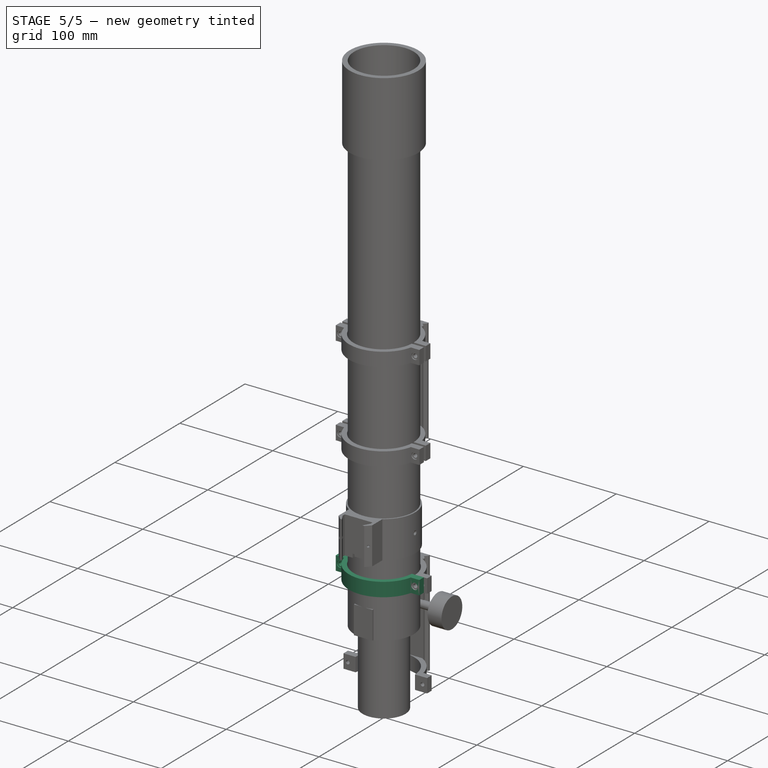
[diagram: stage 5 of 5 — iso view after this stage's code; geometry added in this stage tinted green]
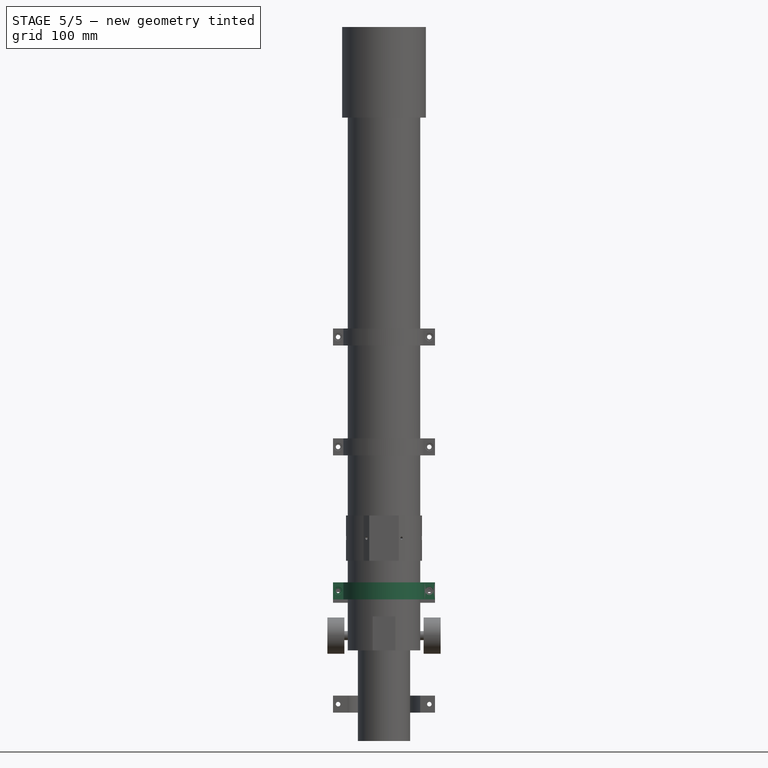
[diagram: stage 5 of 5 — front view after this stage's code; geometry added in this stage tinted green]
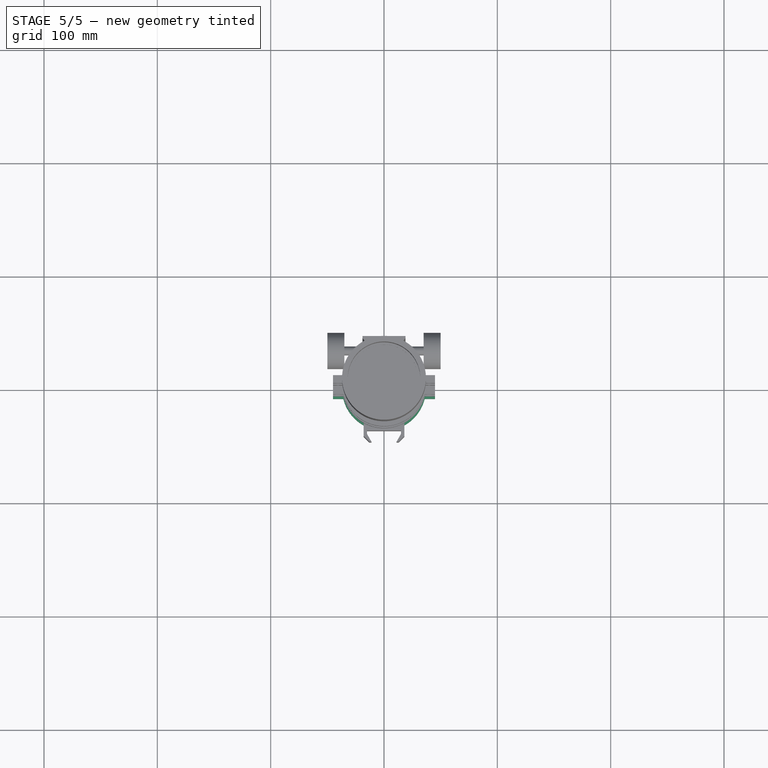
[diagram: stage 5 of 5 — top view after this stage's code; geometry added in this stage tinted green]
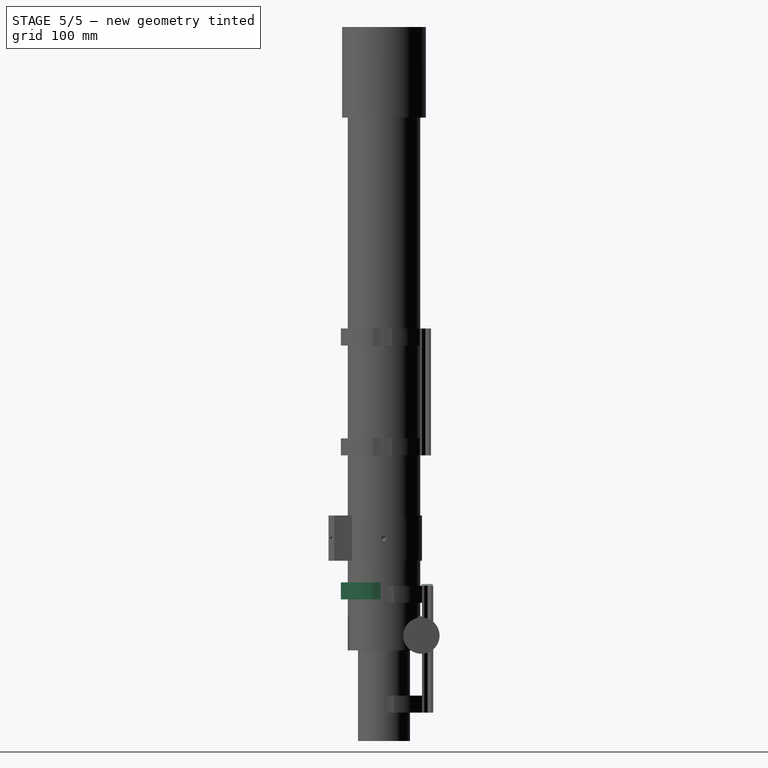
[diagram: stage 5 of 5 — right view after this stage's code; geometry added in this stage tinted green]
FEATURE [Part::Cylinder] Cylinder014005165  label="Válec160"
  Angle = 360
  AttacherType = Attacher::AttachEngine3D
  Height = 10
  Placement = pos=(0,43,54.5) rot=(1,0,0;1.5708rad)
  Radius = 4
FEATURE [Part::Cylinder] Cylinder014005166  label="Válec161"
  Angle = 360
  AttacherType = Attacher::AttachEngine3D
  Height = 10
  Placement = pos=(0,43,-47) rot=(1,0,0;1.5708rad)
  Radius = 4
FEATURE [Part::MultiFuse] Fusion  label="zarazky"
  Shapes = -> [Cylinder014005165,Cylinder014005166]
FEATURE [Part::FeaturePython] Nut008  label="M4-Nut008"  # Fasteners workbench fastener (typed FeaturePython)
  Placement = pos=(-40.2,7,53) rot=(1,0,0;1.5708rad)
  diameter = 6
  invert = false
  matchOuter = false
  offset = 0
  thread = false
  type = 1
FEATURE [Part::FeaturePython] Screw008  label="M4x20-Screw008"  # Fasteners workbench fastener (typed FeaturePython)
  Placement = pos=(-40.5,-9,53) rot=(1,0,0;1.5708rad)
  diameter = 4
  invert = false
  length = 5
  matchOuter = false
  offset = 0
  thread = false
  type = 5
FEATURE [Part::FeaturePython] Screw010  label="M4x20-Screw010"  # Fasteners workbench fastener (typed FeaturePython)
  Placement = pos=(-40.5,-9,53) rot=(1,0,0;1.5708rad)
  diameter = 4
  invert = false
  length = 5
  matchOuter = false
  offset = 0
  thread = false
  type = 5
FEATURE [Part::Cylinder] Cylinder014005172  label="tubus006"
  Angle = 360
  AttacherType = Attacher::AttachEngine3D
  Height = 15
  Placement = pos=(0,-1,-52) rot=(0,0,1;0rad)
  Radius = 37
FEATURE [Part::FeaturePython] Nut011  label="M4-Nut011"  # Fasteners workbench fastener (typed FeaturePython)
  Placement = pos=(-40.2,7,53) rot=(1,0,0;1.5708rad)
  diameter = 6
  invert = false
  matchOuter = false
  offset = 0
  thread = false
  type = 1
FEATURE [Part::FeaturePython] Screw011  label="M4x20-Screw011"  # Fasteners workbench fastener (typed FeaturePython)
  Placement = pos=(-40.5,-9,53) rot=(1,0,0;1.5708rad)
  diameter = 4
  invert = false
  length = 5
  matchOuter = false
  offset = 0
  thread = false
  type = 5
FEATURE [Part::Box] Box027  label="Krychle020"
  AttacherType = Attacher::AttachEngine3D
  Height = 15
  Length = 90
  Placement = pos=(-45,-10,-52) rot=(0,0,1;0rad)
  Width = 17
FEATURE [Part::Box] Box028  label="mezara004"
  AttacherType = Attacher::AttachEngine3D
  Height = 15
  Length = 90
  Placement = pos=(-45,-3,-52) rot=(0,0,1;0rad)
  Width = 3
FEATURE [Part::Box] Box029  label="Krychle021"
  AttacherType = Attacher::AttachEngine3D
  Height = 15
  Length = 90
  Placement = pos=(-45,-10,45) rot=(0,0,1;0rad)
  Width = 17
FEATURE [Part::Box] Box030  label="Krychle022"
  AttacherType = Attacher::AttachEngine3D
  Height = 112
  Length = 38
  Placement = pos=(-19,34,-52) rot=(0,0,1;0rad)
  Width = 6
FEATURE [Part::Box] Box031  label="mezara005"
  AttacherType = Attacher::AttachEngine3D
  Height = 15
  Length = 90
  Placement = pos=(-45,-3,45) rot=(0,0,1;0rad)
  Width = 3
FEATURE [Part::Box] Box032  label="Krychle023"
  AttacherType = Attacher::AttachEngine3D
  Height = 112
  Length = 38
  Placement = pos=(-19,32,-52) rot=(0,0,1;0rad)
  Width = 10
FEATURE [Part::Cylinder] Cylinder014005173  label="tubus007"
  Angle = 360
  AttacherType = Attacher::AttachEngine3D
  Height = 112
  Placement = pos=(0,-1,-52) rot=(0,0,1;0rad)
  Radius = 32
FEATURE [Part::Cylinder] Cylinder014005174  label="tubus008"
  Angle = 360
  AttacherType = Attacher::AttachEngine3D
  Height = 15
  Placement = pos=(0,-1,45) rot=(0,0,1;0rad)
  Radius = 37
FEATURE [Sketcher::SketchObject] Sketch002
  MapMode = 5
  Placement = pos=(0,0,60) rot=(0,0,1;0rad)
  sketch-geometry (6):
    g0: LineSegment StartX=-18.9734 StartY=34.0308 StartZ=0 EndX=-16.0253 EndY=36.9748 EndZ=0
    g1: LineSegment StartX=18.996 StartY=34.0308 StartZ=0 EndX=16.044 EndY=36.9748 EndZ=0
    g2: LineSegment StartX=18.996 StartY=34.0308 StartZ=0 EndX=-18.9734 EndY=34.0308 EndZ=0
    g3: LineSegment StartX=-18.9734 StartY=40.0311 StartZ=0 EndX=-16.0253 EndY=36.9748 EndZ=0
    g4: LineSegment StartX=16.044 StartY=36.9748 StartZ=0 EndX=18.9109 EndY=40.0311 EndZ=0
    g5: LineSegment StartX=-18.9734 StartY=40.0311 StartZ=0 EndX=18.9109 EndY=40.0311 EndZ=0
  constraints (7):
    c: Coincident(g2,g1)
    c: Coincident(g2,g0)
    c: Horizontal(g2)
    c: Coincident(g3,g0)
    c: Coincident(g5,g3)
    c: Coincident(g5,g4)
    c: Horizontal(g5)
FEATURE [Part::Extrusion] Extrude011
  Base = -> Sketch002
  Dir = (0,0,1)
  DirMode = 2
  FaceMakerClass = Part::FaceMakerBullseye
  LengthFwd = -112
  LengthRev = 0
  Solid = true
  Symmetric = false
FEATURE [Part::Cut] Cut061015
  Base = -> Box032
  Tool = -> Box030
FEATURE [Part::MultiFuse] Fusion111  label="Arca plate base002"
  Placement = pos=(0,-0.5,0) rot=(0,0,1;0rad)
  Shapes = -> [Extrude011,Cut061015]
FEATURE [Part::MultiFuse] Fusion112
  Shapes = -> [Box031,Box028,Cylinder014005173]
FEATURE [Part::MultiFuse] Fusion113
  Shapes = -> [Fusion111,Cylinder014005172,Cylinder014005174,Box029,Box027]
FEATURE [Part::Cut] Cut061016
  Base = -> Fusion113
  Tool = -> Fusion112
FEATURE [Part::MultiFuse] Fusion114  label="Srouby008"
  Placement = pos=(0,0,-0.5) rot=(0,0,1;0rad)
  Shapes = -> [Screw011,Nut008]
FEATURE [Part::MultiFuse] Fusion115  label="Srouby009"
  Placement = pos=(0,0,-97.5) rot=(0,0,1;0rad)
  Shapes = -> [Screw008,Nut011]
FEATURE [Part::MultiFuse] Fusion116  label="Srouby010"
  Placement = pos=(80.5,0,-97.5) rot=(0,0,1;0rad)
  Shapes = -> [Screw010,Nut010]
FEATURE [Part::MultiFuse] Fusion118
  Shapes = -> [Fusion114,Fusion117,Fusion115,Fusion116]
FEATURE [Part::Cut] Cut061017  label="Drzak 003"
  Base = -> Cut061016
  Tool = -> Fusion118
FEATURE [Part::Cut] Cut061018  label="Drzak versek"
  Base = -> Cut061017
  Tool = -> Fusion119
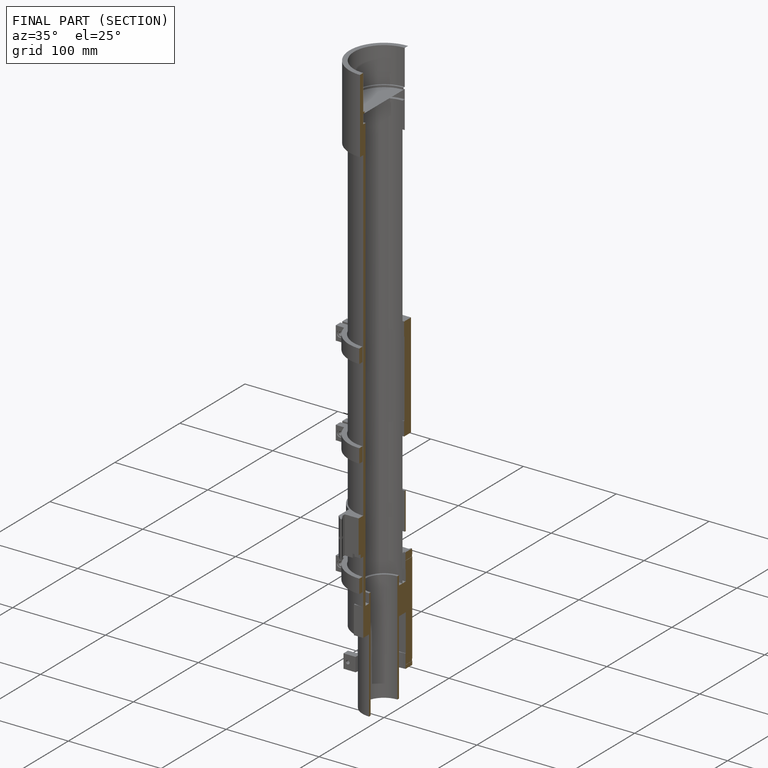
[diagram: finished part — half-section view (interior)]
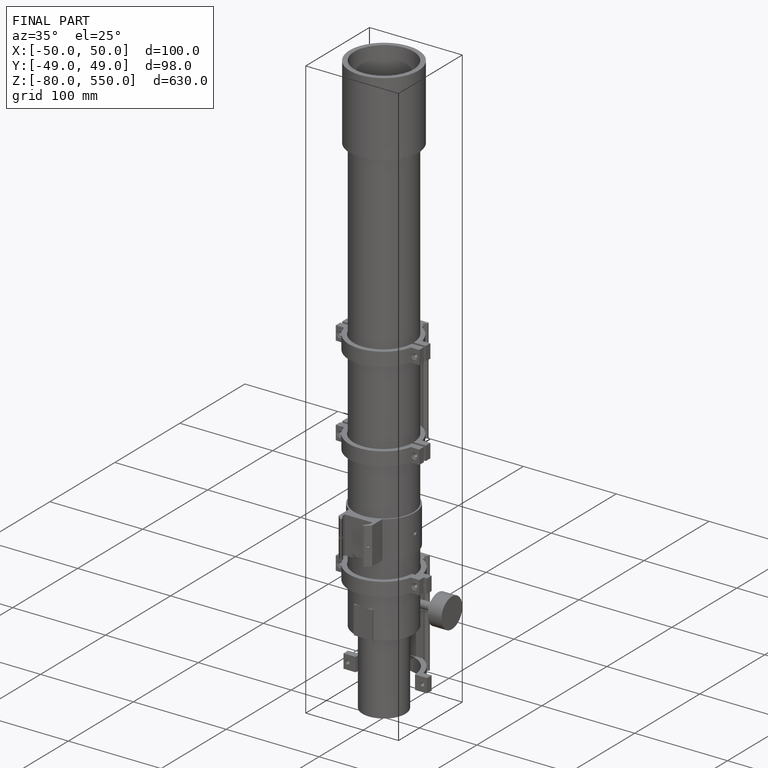
[diagram: finished part — iso view with bounding-box wireframe]
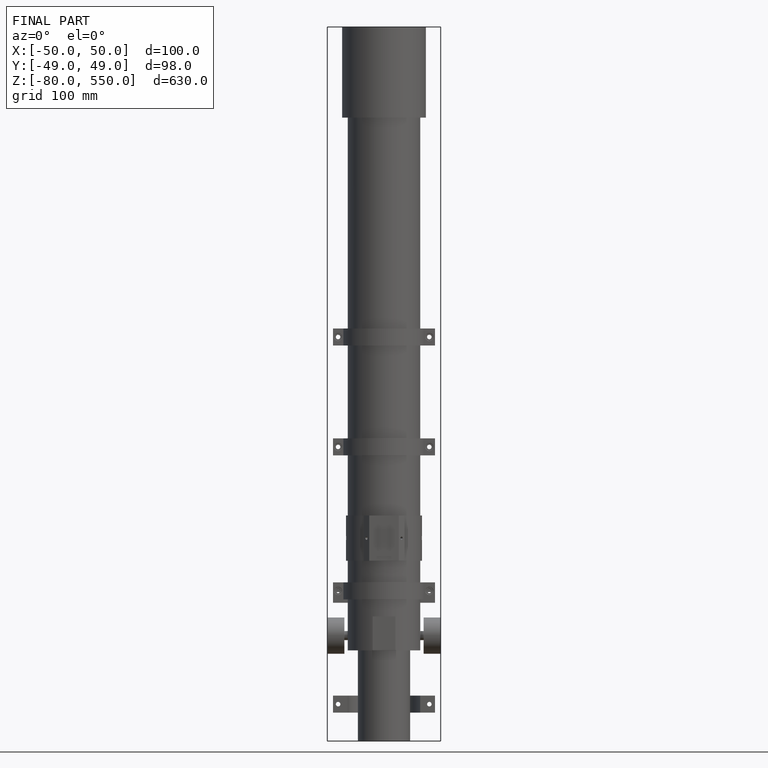
[diagram: finished part — front view with bounding-box wireframe]
